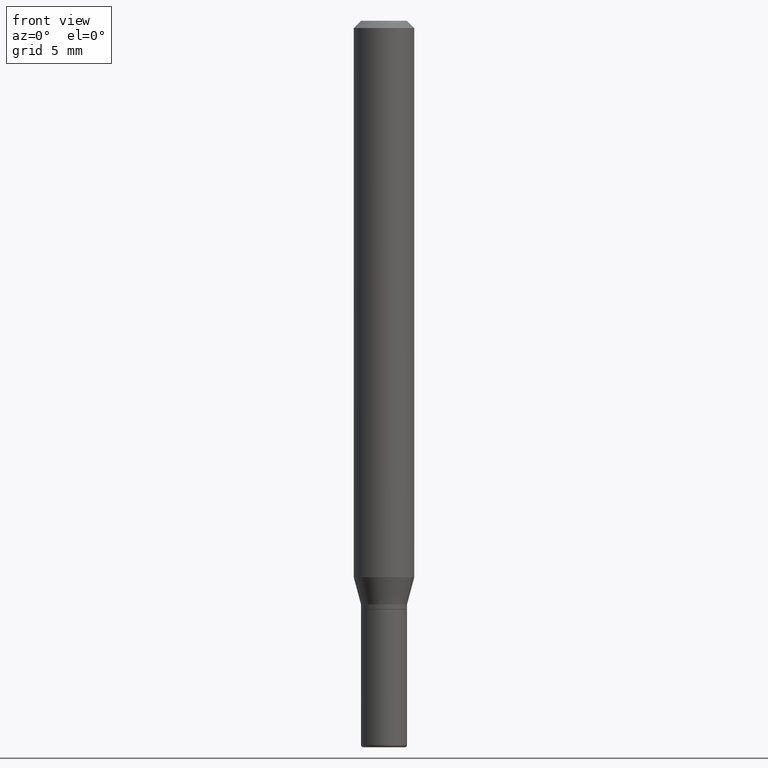
[diagram: clean part render]
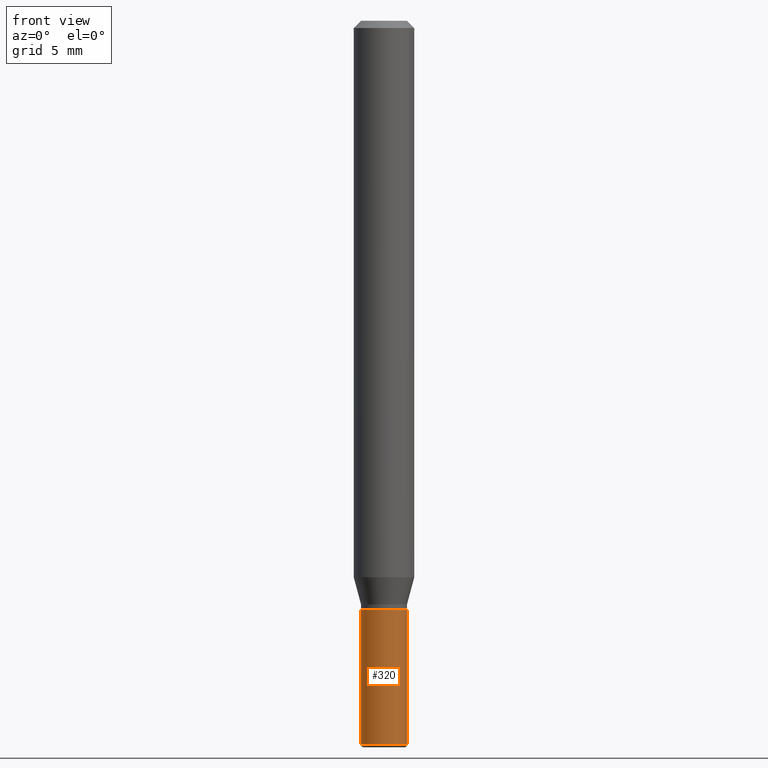
[diagram: same view with one face highlighted and labeled with its STEP entity id]
A machine part, front view. The second image highlights one B-rep face of the part: STEP entity #320.
In plain terms, the highlighted cylindrical surface (edge-blend (fillet) strip) has radius 1.2065 mm, axis along (-0, 0, 1).
Its self-contained STEP definition (entity closure, byte-faithful):
#20 = CYLINDRICAL_SURFACE ( 'NONE', #94, 0.04749999999999995198 ) ;
#39 = AXIS2_PLACEMENT_3D ( 'NONE', #209, #488, #361 ) ;
#49 = ORIENTED_EDGE ( 'NONE', *, *, #489, .T. ) ;
#52 = CARTESIAN_POINT ( 'NONE',  ( 0.04749999999999995198, -3.316907271900973631E-16, 2.316183968503067330E-30 ) ) ;
#53 = CARTESIAN_POINT ( 'NONE',  ( -0.04749999999999995198, 3.375077994860472471E-16, -2.336494167871077808E-30 ) ) ;
#61 = LINE ( 'NONE', #52, #434 ) ;
#62 = CIRCLE ( 'NONE', #345, 0.04749999999999990341 ) ;
#83 = CARTESIAN_POINT ( 'NONE',  ( 0.04749999999999990341, -5.551455328760601441E-15, -1.495000000000000329 ) ) ;
#94 = AXIS2_PLACEMENT_3D ( 'NONE', #99, #490, #294 ) ;
#99 = CARTESIAN_POINT ( 'NONE',  ( 0.000000000000000000, 0.000000000000000000, 0.000000000000000000 ) ) ;
#136 = ORIENTED_EDGE ( 'NONE', *, *, #187, .F. ) ;
#147 = CARTESIAN_POINT ( 'NONE',  ( -0.04749999999999990341, -4.393449414646416504E-15, -1.495000000000000329 ) ) ;
#187 = EDGE_CURVE ( 'NONE', #408, #512, #401, .T. ) ;
#203 = DIRECTION ( 'NONE',  ( -2.445468806185136877E-29, 3.491481338843145188E-15, 1.000000000000000000 ) ) ;
#209 = CARTESIAN_POINT ( 'NONE',  ( 2.971244599514941458E-29, -4.242149826694422488E-15, -1.215000000000000080 ) ) ;
#211 = EDGE_CURVE ( 'NONE', #408, #227, #62, .T. ) ;
#215 = FACE_OUTER_BOUND ( 'NONE', #500, .T. ) ;
#227 = VERTEX_POINT ( 'NONE', #83 ) ;
#283 = VECTOR ( 'NONE', #358, 39.37007874015748143 ) ;
#294 = DIRECTION ( 'NONE',  ( 1.000000000000000000, -6.982962677686267499E-15, 4.876176775795936353E-29 ) ) ;
#299 = ORIENTED_EDGE ( 'NONE', *, *, #211, .T. ) ;
#309 = VERTEX_POINT ( 'NONE', #375 ) ;
#320 = ADVANCED_FACE ( 'NONE', ( #215 ), #20, .T. ) ;
#345 = AXIS2_PLACEMENT_3D ( 'NONE', #439, #482, #430 ) ;
#358 = DIRECTION ( 'NONE',  ( -2.445468806185136877E-29, 3.491481338843145188E-15, 1.000000000000000000 ) ) ;
#361 = DIRECTION ( 'NONE',  ( 1.000000000000000000, -6.982962677686261977E-15, 0.000000000000000000 ) ) ;
#375 = CARTESIAN_POINT ( 'NONE',  ( 0.04749999999999999362, -4.573840553884519999E-15, -1.215000000000000080 ) ) ;
#401 = LINE ( 'NONE', #53, #283 ) ;
#403 = CIRCLE ( 'NONE', #39, 0.04749999999999999362 ) ;
#408 = VERTEX_POINT ( 'NONE', #147 ) ;
#421 = CARTESIAN_POINT ( 'NONE',  ( -0.04749999999999999362, -4.393449414646416504E-15, -1.215000000000000080 ) ) ;
#425 = ORIENTED_EDGE ( 'NONE', *, *, #466, .F. ) ;
#430 = DIRECTION ( 'NONE',  ( 1.000000000000000000, -6.982962677686275388E-15, 0.000000000000000000 ) ) ;
#434 = VECTOR ( 'NONE', #203, 39.37007874015748143 ) ;
#439 = CARTESIAN_POINT ( 'NONE',  ( 3.655975865246779683E-29, -5.219764601570503930E-15, -1.495000000000000329 ) ) ;
#466 = EDGE_CURVE ( 'NONE', #512, #309, #403, .T. ) ;
#482 = DIRECTION ( 'NONE',  ( -2.445468806185136597E-29, 3.491481338843145583E-15, 1.000000000000000000 ) ) ;
#488 = DIRECTION ( 'NONE',  ( -2.445468806185136597E-29, 3.491481338843145583E-15, 1.000000000000000000 ) ) ;
#489 = EDGE_CURVE ( 'NONE', #227, #309, #61, .T. ) ;
#490 = DIRECTION ( 'NONE',  ( -2.445468806185136597E-29, 3.491481338843145583E-15, 1.000000000000000000 ) ) ;
#500 = EDGE_LOOP ( 'NONE', ( #136, #299, #49, #425 ) ) ;
#512 = VERTEX_POINT ( 'NONE', #421 ) ;